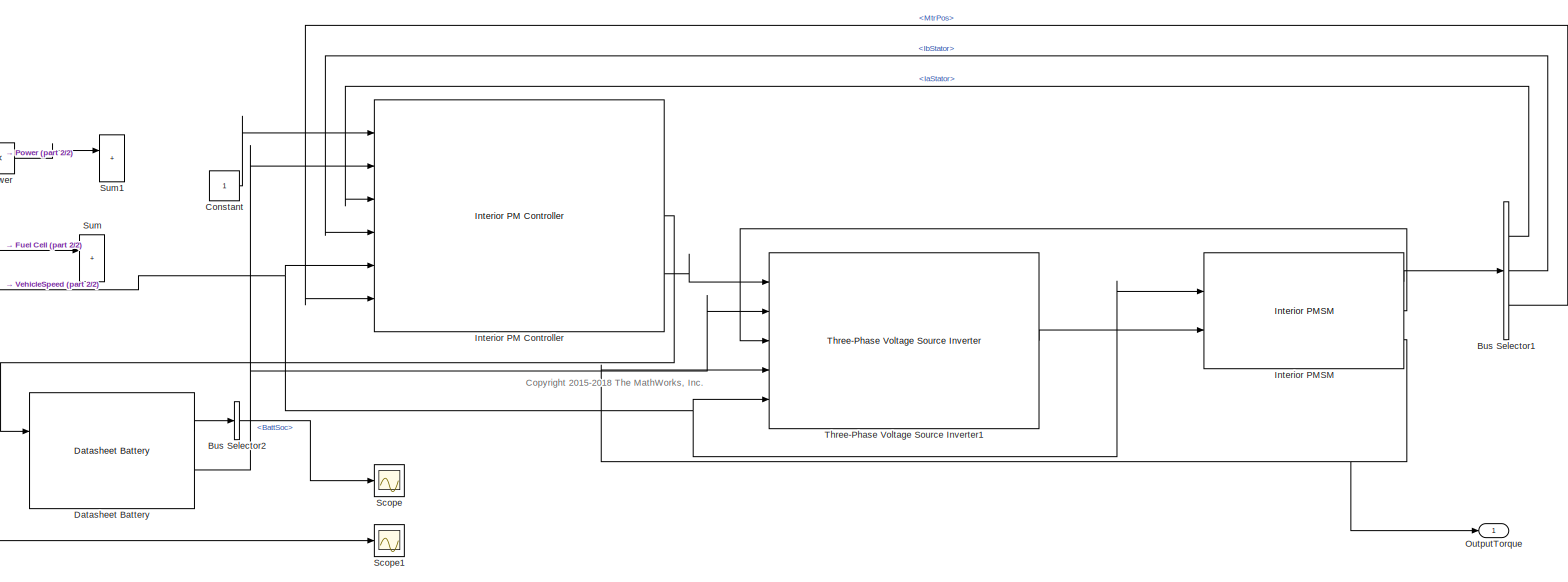
[diagram: root canvas - part 1/2, right side, full height]
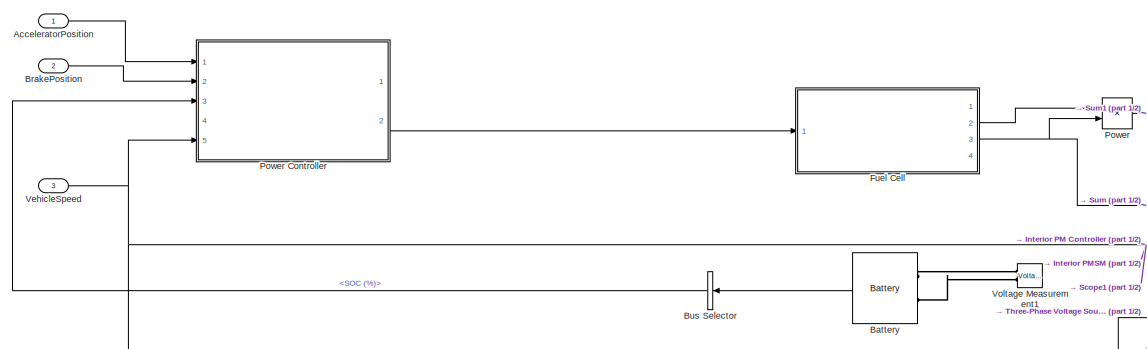
[diagram: root canvas - part 2/2, middle left region]
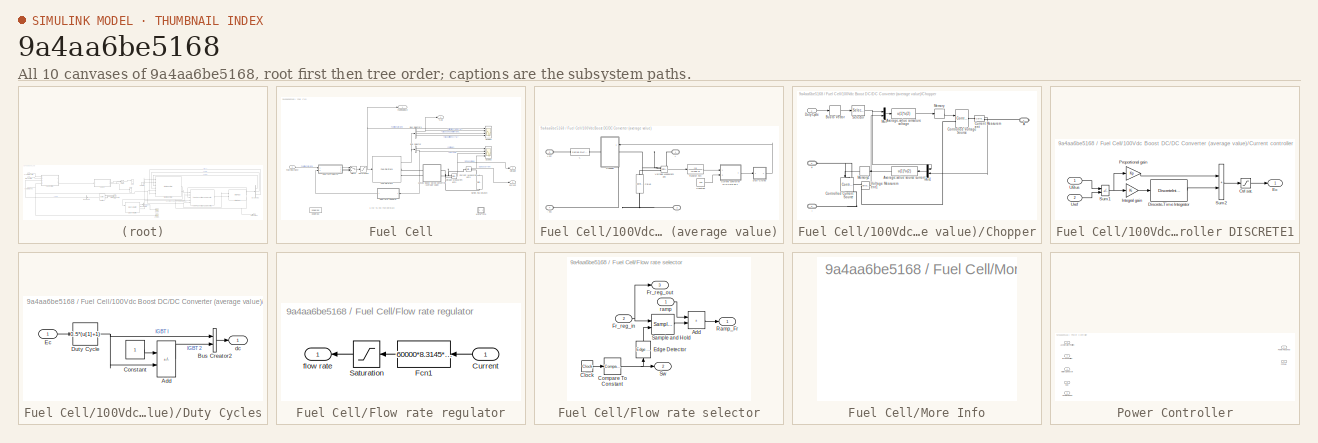
[diagram: thumbnail index - all 10 canvases of the model, root first then tree order]
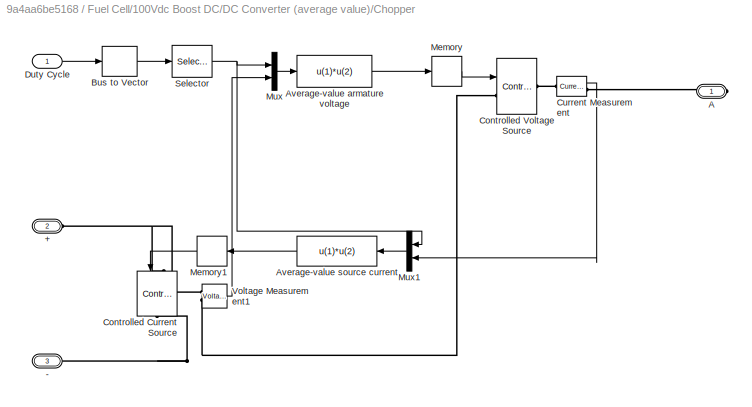
MODEL slx_9a4aa6be5168
KIND model
CONFIG AbsTol = auto
CONFIG EnableMultiTasking = off
CONFIG FixedStep = auto
CONFIG MaxStep = auto
CONFIG MinStep = auto
CONFIG RelTol = 1e-3
CONFIG SampleTimeConstraint = Unconstrained
CONFIG Solver = VariableStepAuto
CONFIG SolverName = VariableStepAuto
CONFIG StartTime = 0.0
CONFIG StopTime = 10.0
BLOCK [Inport] AcceleratorPosition
BLOCK [Reference] Battery  REF=electricdrivelib/Extra Sources/Battery
  Ports = [0, 1, 0, 0, 0, 2]
  SourceBlock = electricdrivelib/Extra Sources/Battery
  SourceProductBaseCode = PS
  SourceType = Battery
BLOCK [Inport] BrakePosition
  Port = 2
BLOCK [BusSelector] Bus Selector
  OutputSignals = SOC (%)
  Ports = [1, 1]
BLOCK [BusSelector] Bus Selector1
  AttributesFormatString = %<OutputSignals>
  OutputSignals = IaStator,IbStator,MtrPos
  Ports = [1, 3]
BLOCK [BusSelector] Bus Selector2
  OutputSignals = BattSoc
  Ports = [1, 1]
BLOCK [Constant] Constant
BLOCK [Reference] Datasheet Battery  REF=autolibdatasheetbattery/Datasheet Battery
  Ports = [2, 2]
  SourceBlock = autolibdatasheetbattery/Datasheet Battery
  SourceProductBaseCode = PW
  SourceType = Datasheet Battery
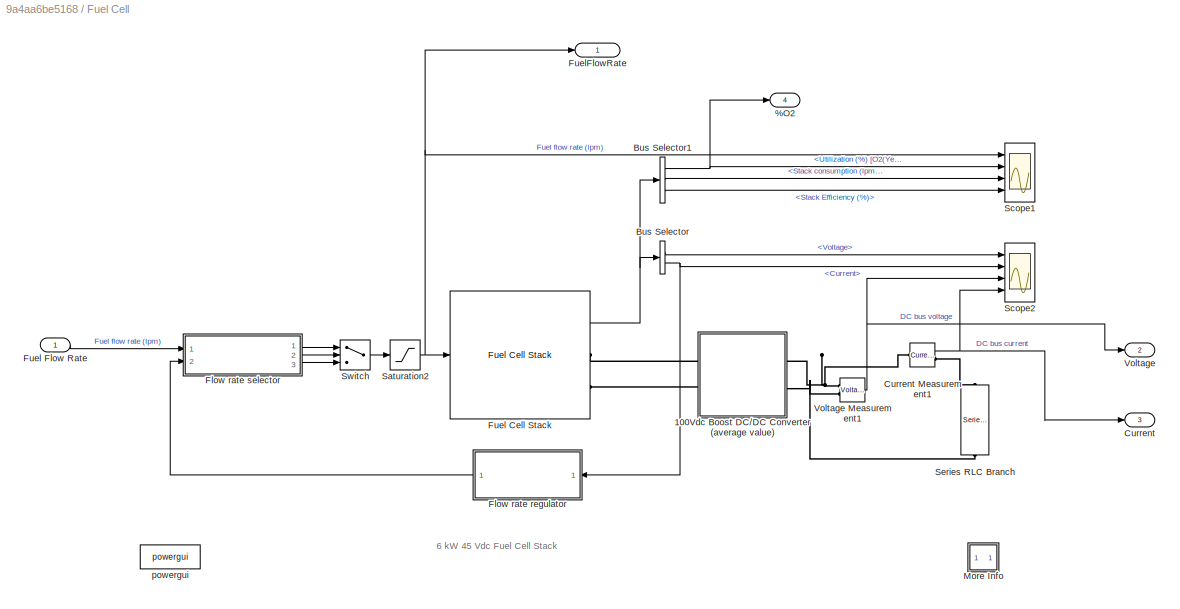
BLOCK [SubSystem] Fuel Cell
  Ports = [1, 4]
  RequestExecContextInheritance = off
BLOCK [Outport] Fuel Cell/%O2
  Port = 4
BLOCK [SubSystem] Fuel Cell/100Vdc Boost DC//DC Converter (average value)
  Ports = [0, 0, 0, 0, 0, 2, 2]
  RequestExecContextInheritance = off
BLOCK [PMIOPort] Fuel Cell/100Vdc Boost DC//DC Converter (average value)/+
  NameLocation = top
  Side = Right
  Tag = PMCPort
BLOCK [PMIOPort] Fuel Cell/100Vdc Boost DC//DC Converter (average value)/+ FC
  NameLocation = top
  Port = 3
  Side = Left
  Tag = PMCPort
BLOCK [PMIOPort] Fuel Cell/100Vdc Boost DC//DC Converter (average value)/-
  NameLocation = top
  Port = 2
  Side = Right
  Tag = PMCPort
BLOCK [PMIOPort] Fuel Cell/100Vdc Boost DC//DC Converter (average value)/- FC
  NameLocation = top
  Port = 4
  Side = Left
  Tag = PMCPort
BLOCK [Reference] Fuel Cell/100Vdc Boost DC//DC Converter (average value)/CBus  REF=powerlib/Elements/Series RLC Branch
  NameLocation = left
  Ports = [0, 0, 0, 0, 0, 1, 1]
  SourceBlock = powerlib/Elements/Series RLC Branch
  SourceProductBaseCode = MT,PS
  SourceType = Series RLC Branch
BLOCK [SubSystem] Fuel Cell/100Vdc Boost DC//DC Converter (average value)/Chopper
  NameLocation = top
  Ports = [1, 0, 0, 0, 0, 2, 1]
  RequestExecContextInheritance = off
BLOCK [PMIOPort] Fuel Cell/100Vdc Boost DC//DC Converter (average value)/Chopper/+
  Port = 2
  Side = Left
BLOCK [PMIOPort] Fuel Cell/100Vdc Boost DC//DC Converter (average value)/Chopper/-
  Port = 3
  Side = Left
BLOCK [PMIOPort] Fuel Cell/100Vdc Boost DC//DC Converter (average value)/Chopper/A
  Side = Right
BLOCK [Fcn] Fuel Cell/100Vdc Boost DC//DC Converter (average value)/Chopper/Average-value armature voltage
  Expr = u(1)*u(2)
BLOCK [Fcn] Fuel Cell/100Vdc Boost DC//DC Converter (average value)/Chopper/Average-value source current
  Expr = u(1)*u(2)
BLOCK [BusToVector] Fuel Cell/100Vdc Boost DC//DC Converter (average value)/Chopper/Bus to Vector
BLOCK [Reference] Fuel Cell/100Vdc Boost DC//DC Converter (average value)/Chopper/Controlled Current Source  REF=powerlib/Electrical
Sources/Controlled Current Source
  NameLocation = left
  Ports = [1, 0, 0, 0, 0, 1, 1]
  SourceBlock = powerlib/Electrical\nSources/Controlled Current Source
  SourceProductBaseCode = MT,PS
  SourceType = Controlled Current Source
BLOCK [Reference] Fuel Cell/100Vdc Boost DC//DC Converter (average value)/Chopper/Controlled Voltage Source  REF=powerlib/Electrical
Sources/Controlled Voltage Source
  Ports = [1, 0, 0, 0, 0, 1, 1]
  SourceBlock = powerlib/Electrical\nSources/Controlled Voltage Source
  SourceProductBaseCode = MT,PS
  SourceType = Controlled Voltage Source
BLOCK [Reference] Fuel Cell/100Vdc Boost DC//DC Converter (average value)/Chopper/Current Measurement  REF=powerlib/Measurements/Current Measurement
  AttributesFormatString = \n
  NameLocation = top
  Ports = [0, 1, 0, 0, 0, 1, 1]
  SourceBlock = powerlib/Measurements/Current Measurement
  SourceProductBaseCode = MT,PS
  SourceType = Current Measurement
  Tag = PoWeRsYsTeMmEaSuReMeNt
BLOCK [Inport] Fuel Cell/100Vdc Boost DC//DC Converter (average value)/Chopper/Duty Cycle
BLOCK [Memory] Fuel Cell/100Vdc Boost DC//DC Converter (average value)/Chopper/Memory
BLOCK [Memory] Fuel Cell/100Vdc Boost DC//DC Converter (average value)/Chopper/Memory1
  NameLocation = top
BLOCK [Mux] Fuel Cell/100Vdc Boost DC//DC Converter (average value)/Chopper/Mux
  DisplayOption = bar
  Inputs = 2
  Ports = [2, 1]
BLOCK [Mux] Fuel Cell/100Vdc Boost DC//DC Converter (average value)/Chopper/Mux1
  DisplayOption = bar
  Inputs = 2
  NameLocation = top
  Ports = [2, 1]
BLOCK [Selector] Fuel Cell/100Vdc Boost DC//DC Converter (average value)/Chopper/Selector
  IndexOptions = Index vector (dialog)
  Indices = [1]
  InputPortWidth = 2
  OutputSizes = 1
  Ports = [1, 1]
BLOCK [Reference] Fuel Cell/100Vdc Boost DC//DC Converter (average value)/Chopper/Voltage Measurement1  REF=powerlib/Measurements/Voltage Measurement
  AttributesFormatString = \n
  Ports = [0, 1, 0, 0, 0, 2]
  SourceBlock = powerlib/Measurements/Voltage Measurement
  SourceProductBaseCode = MT,PS
  SourceType = Voltage Measurement
  Tag = PoWeRsYsTeMmEaSuReMeNt
BLOCK [Constant] Fuel Cell/100Vdc Boost DC//DC Converter (average value)/Constant
  Value = 100
BLOCK [SubSystem] Fuel Cell/100Vdc Boost DC//DC Converter (average value)/Current controller DISCRETE1
  NameLocation = top
  Ports = [2, 1]
  RequestExecContextInheritance = off
BLOCK [Saturate] Fuel Cell/100Vdc Boost DC//DC Converter (average value)/Current controller DISCRETE1/Ctrl sat.
  LowerLimit = -0.95
  UpperLimit = 0.95
BLOCK [DiscreteIntegrator] Fuel Cell/100Vdc Boost DC//DC Converter (average value)/Current controller DISCRETE1/Discrete-Time Integrator
  ICPrevOutput = DiscIntNeverNeededParam
  ICPrevScaledInput = DiscIntNeverNeededParam
  IntegratorMethod = Integration: Trapezoidal
  LimitOutput = on
  LowerSaturationLimit = -0.95
  Ports = [1, 1]
  SampleTime = Ts
  UpperSaturationLimit = 0.95
BLOCK [Outport] Fuel Cell/100Vdc Boost DC//DC Converter (average value)/Current controller DISCRETE1/Ec
  InitialOutput = 0
  VectorParamsAs1DForOutWhenUnconnected = off
BLOCK [Gain] Fuel Cell/100Vdc Boost DC//DC Converter (average value)/Current controller DISCRETE1/Integral gain
  Gain = Ki
  OutDataTypeStr = Inherit: Same as input
  ParamDataTypeStr = Inherit: Same as input
  SaturateOnIntegerOverflow = on
BLOCK [Gain] Fuel Cell/100Vdc Boost DC//DC Converter (average value)/Current controller DISCRETE1/Proportional gain
  Gain = Kp
  NameLocation = top
  OutDataTypeStr = Inherit: Same as input
  ParamDataTypeStr = Inherit: Same as input
  SaturateOnIntegerOverflow = on
BLOCK [Sum] Fuel Cell/100Vdc Boost DC//DC Converter (average value)/Current controller DISCRETE1/Sum1
  IconShape = rectangular
  InputSameDT = on
  Inputs = +-
  OutDataTypeStr = Inherit: Same as first input
  Ports = [2, 1]
  SaturateOnIntegerOverflow = on
BLOCK [Sum] Fuel Cell/100Vdc Boost DC//DC Converter (average value)/Current controller DISCRETE1/Sum2
  IconShape = rectangular
  InputSameDT = on
  OutDataTypeStr = Inherit: Same as first input
  Ports = [2, 1]
  SaturateOnIntegerOverflow = on
BLOCK [Inport] Fuel Cell/100Vdc Boost DC//DC Converter (average value)/Current controller DISCRETE1/UBus
BLOCK [Inport] Fuel Cell/100Vdc Boost DC//DC Converter (average value)/Current controller DISCRETE1/Uref
  Port = 2
BLOCK [SubSystem] Fuel Cell/100Vdc Boost DC//DC Converter (average value)/Duty Cycles
  Ports = [1, 1]
  RequestExecContextInheritance = off
BLOCK [Sum] Fuel Cell/100Vdc Boost DC//DC Converter (average value)/Duty Cycles/Add
  IconShape = rectangular
  Inputs = +-
  Ports = [2, 1]
BLOCK [BusCreator] Fuel Cell/100Vdc Boost DC//DC Converter (average value)/Duty Cycles/Bus Creator2
  DisplayOption = bar
  InheritFromInputs = on
  Inputs = 2
  Ports = [2, 1]
BLOCK [Constant] Fuel Cell/100Vdc Boost DC//DC Converter (average value)/Duty Cycles/Constant
BLOCK [Fcn] Fuel Cell/100Vdc Boost DC//DC Converter (average value)/Duty Cycles/Duty Cycle
  Expr = 0.5*(u[1]+1)
BLOCK [Inport] Fuel Cell/100Vdc Boost DC//DC Converter (average value)/Duty Cycles/Ec
BLOCK [Outport] Fuel Cell/100Vdc Boost DC//DC Converter (average value)/Duty Cycles/dc
  VectorParamsAs1DForOutWhenUnconnected = off
BLOCK [Reference] Fuel Cell/100Vdc Boost DC//DC Converter (average value)/L  REF=powerlib/Elements/Series RLC Branch
  NameLocation = top
  Ports = [0, 0, 0, 0, 0, 1, 1]
  SourceBlock = powerlib/Elements/Series RLC Branch
  SourceProductBaseCode = MT,PS
  SourceType = Series RLC Branch
BLOCK [TransferFcn] Fuel Cell/100Vdc Boost DC//DC Converter (average value)/Transfer Fcn
  Denominator = [0.001 1]
BLOCK [Reference] Fuel Cell/100Vdc Boost DC//DC Converter (average value)/Voltage Measurement  REF=powerlib/Measurements/Voltage Measurement
  Ports = [0, 1, 0, 0, 0, 2]
  SourceBlock = powerlib/Measurements/Voltage Measurement
  SourceProductBaseCode = MT,PS
  SourceType = Voltage Measurement
BLOCK [BusSelector] Fuel Cell/Bus Selector
  OutputSignals = Voltage,Current
  Ports = [1, 2]
BLOCK [BusSelector] Fuel Cell/Bus Selector1
  OutputSignals = Utilization (%) [O2(Yellow); H2(Magenta)],Stack consumption (lpm) [Air(Yellow); Fuel(Magenta)],Stack Efficiency (%)
  Ports = [1, 3]
BLOCK [Outport] Fuel Cell/Current
  Port = 3
BLOCK [Reference] Fuel Cell/Current Measurement1  REF=powerlib/Measurements/Current Measurement
  Ports = [0, 1, 0, 0, 0, 1, 1]
  SourceBlock = powerlib/Measurements/Current Measurement
  SourceProductBaseCode = MT,PS
  SourceType = Current Measurement
BLOCK [SubSystem] Fuel Cell/Flow rate regulator
  Ports = [1, 1]
  RequestExecContextInheritance = off
BLOCK [Inport] Fuel Cell/Flow rate regulator/Current
BLOCK [Fcn] Fuel Cell/Flow rate regulator/Fcn1
  Expr = 60000*8.3145*(273+T)*Nc*u(1)/(2*96485*(Pf*101325)*Uf_H2/100*x/100)
  NameLocation = top
BLOCK [Saturate] Fuel Cell/Flow rate regulator/Saturation
  LowerLimit = 1
  NameLocation = top
  UpperLimit = inf
BLOCK [Outport] Fuel Cell/Flow rate regulator/flow rate
  VectorParamsAs1DForOutWhenUnconnected = off
BLOCK [SubSystem] Fuel Cell/Flow rate selector
  Ports = [2, 3]
  RequestExecContextInheritance = off
BLOCK [Sum] Fuel Cell/Flow rate selector/Add
  IconShape = rectangular
  Ports = [2, 1]
BLOCK [Clock] Fuel Cell/Flow rate selector/Clock
  Decimation = 1
BLOCK [Reference] Fuel Cell/Flow rate selector/Compare To Constant  REF=simulink/Logic and Bit
Operations/Compare
To Constant
  Ports = [1, 1]
  SourceBlock = simulink/Logic and Bit\nOperations/Compare\nTo Constant
  SourceProductBaseCode = SL
  SourceType = Compare To Constant
BLOCK [Reference] Fuel Cell/Flow rate selector/Edge Detector  REF=powerlib_meascontrol/Logic/Edge Detector
  NameLocation = left
  Ports = [1, 1]
  SourceBlock = powerlib_meascontrol/Logic/Edge Detector
  SourceProductBaseCode = MT,PS
  SourceType = Edge Detector
BLOCK [Inport] Fuel Cell/Flow rate selector/Fr_reg_in
  Port = 2
BLOCK [Outport] Fuel Cell/Flow rate selector/Fr_reg_out
  Port = 3
  VectorParamsAs1DForOutWhenUnconnected = off
BLOCK [Outport] Fuel Cell/Flow rate selector/Ramp_Fr
  VectorParamsAs1DForOutWhenUnconnected = off
BLOCK [Reference] Fuel Cell/Flow rate selector/Sample and Hold  REF=powerlib_meascontrol/Additional Components/Sample and
Hold
  Ports = [2, 1]
  SourceBlock = powerlib_meascontrol/Additional Components/Sample and\nHold
  SourceProductBaseCode = MT,PS
  SourceType = Sample and Hold
BLOCK [Outport] Fuel Cell/Flow rate selector/Sw
  Port = 2
  VectorParamsAs1DForOutWhenUnconnected = off
BLOCK [Inport] Fuel Cell/Flow rate selector/ramp
BLOCK [Reference] Fuel Cell/Fuel Cell Stack  REF=electricdrivelib/Extra Sources/Fuel Cell Stack
  Ports = [1, 1, 0, 0, 0, 0, 2]
  SourceBlock = electricdrivelib/Extra Sources/Fuel Cell Stack
  SourceProductBaseCode = PS
  SourceType = Fuel Cell Stack
BLOCK [Inport] Fuel Cell/Fuel Flow Rate
BLOCK [Outport] Fuel Cell/FuelFlowRate
BLOCK [SubSystem] Fuel Cell/More Info
  NameLocation = top
  OpenFcn = showdemo(bdroot(gcb))
  Ports = []
  RequestExecContextInheritance = off
BLOCK [Saturate] Fuel Cell/Saturation2
  LowerLimit = 0
  UpperLimit = 85
BLOCK [Scope] Fuel Cell/Scope1
  Floating = off
  NumInputPorts = 4
  Ports = [4]
  ScopeSpecificationString = Simulink.scopes.TimeScopeBlockCfg('CurrentConfiguration', extmgr.ConfigurationSet(extmgr.Configuration('Core','General UI',true,'FigureColor',[0.156862745098039 0.156862745098039 0.156862745098039]),extmgr.Configuration('Core','Source UI',true),extmgr.Configuration('Sources','WiredSimulink',true,'DataLoggingVariableName','ScopeData1','DataLoggingSaveFormat','StructureWithTime','DataLoggingDecimati...<+6600ch>
BLOCK [Scope] Fuel Cell/Scope2
  Floating = off
  NumInputPorts = 4
  Ports = [4]
  ScopeSpecificationString = Simulink.scopes.TimeScopeBlockCfg('CurrentConfiguration', extmgr.ConfigurationSet(extmgr.Configuration('Core','General UI',true,'FigureColor',[0.156862745098039 0.156862745098039 0.156862745098039]),extmgr.Configuration('Core','Source UI',true),extmgr.Configuration('Sources','WiredSimulink',true,'DataLoggingSaveFormat','StructureWithTime','DataLoggingDecimation','1'),extmgr.Configuration('Visuals'...<+6357ch>
BLOCK [Reference] Fuel Cell/Series RLC Branch  REF=powerlib/Elements/Series RLC Branch
  NameLocation = left
  Ports = [0, 0, 0, 0, 0, 1, 1]
  SourceBlock = powerlib/Elements/Series RLC Branch
  SourceProductBaseCode = MT,PS
  SourceType = Series RLC Branch
BLOCK [Switch] Fuel Cell/Switch
  Criteria = u2 > Threshold
  InputSameDT = off
  SaturateOnIntegerOverflow = off
BLOCK [Outport] Fuel Cell/Voltage
  Port = 2
BLOCK [Reference] Fuel Cell/Voltage Measurement1  REF=powerlib/Measurements/Voltage Measurement
  Ports = [0, 1, 0, 0, 0, 2]
  SourceBlock = powerlib/Measurements/Voltage Measurement
  SourceProductBaseCode = MT,PS
  SourceType = Voltage Measurement
BLOCK [Reference] Fuel Cell/powergui  REF=powerlib/powergui
  Ports = []
  SourceBlock = powerlib/powergui
  SourceProductBaseCode = MT,PS
  SourceType = PSB option menu block
BLOCK [Reference] Interior PM Controller  REF=autolibmotorctrlr/Interior PM Controller
  Ports = [6, 3]
  SourceBlock = autolibmotorctrlr/Interior PM Controller
  SourceProductBaseCode = PW
  SourceType = Interior PM Controller
BLOCK [Reference] Interior PMSM  REF=autolibpmsminterior/Interior PMSM
  Ports = [2, 3]
  SourceBlock = autolibpmsminterior/Interior PMSM
  SourceProductBaseCode = PW,MT,VE,VP
  SourceType = Interior PMSM
BLOCK [Outport] OutputTorque
BLOCK [Product] Power
  Ports = [2, 1]
BLOCK [SubSystem] Power Controller
  Ports = [5, 2]
  RequestExecContextInheritance = off
BLOCK [Inport] Power Controller/AcceloratorPosition
BLOCK [Inport] Power Controller/BrakePosition
  Port = 2
BLOCK [Outport] Power Controller/FCFuel
  Port = 2
BLOCK [Inport] Power Controller/MotorSpeed(w)
  Port = 4
BLOCK [Outport] Power Controller/Power Required
BLOCK [Inport] Power Controller/SOC
  Port = 3
BLOCK [Inport] Power Controller/VehicleSpeed
  Port = 5
BLOCK [Scope] Scope
  Floating = off
  NumInputPorts = 1
  Ports = [1]
  ScopeSpecificationString = Simulink.scopes.TimeScopeBlockCfg('CurrentConfiguration', extmgr.ConfigurationSet(extmgr.Configuration('Core','General UI',true),extmgr.Configuration('Core','Source UI',true),extmgr.Configuration('Sources','WiredSimulink',true,'DataLoggingVariableName','ScopeData1'),extmgr.Configuration('Visuals','Time Domain',true),extmgr.Configuration('Tools','Plot Navigation',true),extmgr.Configuration('Tools',...<+40ch>
BLOCK [Scope] Scope1
  Floating = off
  NumInputPorts = 1
  Ports = [1]
  ScopeSpecificationString = Simulink.scopes.TimeScopeBlockCfg('CurrentConfiguration', extmgr.ConfigurationSet(extmgr.Configuration('Core','General UI',true),extmgr.Configuration('Core','Source UI',true),extmgr.Configuration('Sources','WiredSimulink',true,'DataLoggingVariableName','ScopeData2'),extmgr.Configuration('Visuals','Time Domain',true),extmgr.Configuration('Tools','Plot Navigation',true),extmgr.Configuration('Tools',...<+40ch>
BLOCK [Sum] Sum
  IconShape = rectangular
  Ports = [2, 1]
BLOCK [Sum] Sum1
  IconShape = rectangular
  Ports = [2, 1]
BLOCK [Reference] Three-Phase Voltage Source Inverter1  REF=autolibinverter/Three-Phase Voltage Source Inverter
  Ports = [5, 3]
  SourceBlock = autolibinverter/Three-Phase Voltage Source Inverter
  SourceProductBaseCode = PW,MT,VE,VP
  SourceType = Three-Phase Voltage Source Inverter
BLOCK [Inport] VehicleSpeed
  Port = 3
BLOCK [Reference] Voltage Measurement1  REF=powerlib/Measurements/Voltage Measurement
  Ports = [0, 1, 0, 0, 0, 2]
  SourceBlock = powerlib/Measurements/Voltage Measurement
  SourceProductBaseCode = PS
  SourceType = Voltage Measurement
  UserDataPersistent = on
ANNOTATION (root): <copyright redacted>
ANNOTATION Fuel Cell: 6 kW 45 Vdc Fuel Cell Stack
LINE AcceleratorPosition:1 -> Power Controller:1
LINE Battery:1 -> Bus Selector:1
LINE BrakePosition:1 -> Power Controller:2
LINE Bus Selector1:1 -> Interior PM Controller:3
LINE Bus Selector1:2 -> Interior PM Controller:4
LINE Bus Selector1:3 -> Interior PM Controller:6
LINE Bus Selector2:1 -> Scope:1
LINE Bus Selector:1 -> Power Controller:3
LINE Constant:1 -> Interior PM Controller:1
LINE Datasheet Battery:1 -> Bus Selector2:1
NET Datasheet Battery:2 -> Interior PM Controller:2, Three-Phase Voltage Source Inverter1:2
LINE Fuel Cell/100Vdc Boost DC//DC Converter (average value)/Chopper/Average-value armature voltage:1 -> Fuel Cell/100Vdc Boost DC//DC Converter (average value)/Chopper/Memory:1
LINE Fuel Cell/100Vdc Boost DC//DC Converter (average value)/Chopper/Average-value source current:1 -> Fuel Cell/100Vdc Boost DC//DC Converter (average value)/Chopper/Memory1:1
LINE Fuel Cell/100Vdc Boost DC//DC Converter (average value)/Chopper/Bus to Vector:1 -> Fuel Cell/100Vdc Boost DC//DC Converter (average value)/Chopper/Selector:1
LINE Fuel Cell/100Vdc Boost DC//DC Converter (average value)/Chopper/Current Measurement:1 -> Fuel Cell/100Vdc Boost DC//DC Converter (average value)/Chopper/Mux1:2
LINE Fuel Cell/100Vdc Boost DC//DC Converter (average value)/Chopper/Duty Cycle:1 -> Fuel Cell/100Vdc Boost DC//DC Converter (average value)/Chopper/Bus to Vector:1
LINE Fuel Cell/100Vdc Boost DC//DC Converter (average value)/Chopper/Memory1:1 -> Fuel Cell/100Vdc Boost DC//DC Converter (average value)/Chopper/Controlled Current Source:1
LINE Fuel Cell/100Vdc Boost DC//DC Converter (average value)/Chopper/Memory:1 -> Fuel Cell/100Vdc Boost DC//DC Converter (average value)/Chopper/Controlled Voltage Source:1
LINE Fuel Cell/100Vdc Boost DC//DC Converter (average value)/Chopper/Mux1:1 -> Fuel Cell/100Vdc Boost DC//DC Converter (average value)/Chopper/Average-value source current:1
LINE Fuel Cell/100Vdc Boost DC//DC Converter (average value)/Chopper/Mux:1 -> Fuel Cell/100Vdc Boost DC//DC Converter (average value)/Chopper/Average-value armature voltage:1
NET Fuel Cell/100Vdc Boost DC//DC Converter (average value)/Chopper/Selector:1 -> Fuel Cell/100Vdc Boost DC//DC Converter (average value)/Chopper/Mux1:1, Fuel Cell/100Vdc Boost DC//DC Converter (average value)/Chopper/Mux:1
LINE Fuel Cell/100Vdc Boost DC//DC Converter (average value)/Chopper/Voltage Measurement1:1 -> Fuel Cell/100Vdc Boost DC//DC Converter (average value)/Chopper/Mux:2
LINE Fuel Cell/100Vdc Boost DC//DC Converter (average value)/Constant:1 -> Fuel Cell/100Vdc Boost DC//DC Converter (average value)/Current controller DISCRETE1:2
LINE Fuel Cell/100Vdc Boost DC//DC Converter (average value)/Current controller DISCRETE1/Ctrl sat.:1 -> Fuel Cell/100Vdc Boost DC//DC Converter (average value)/Current controller DISCRETE1/Ec:1
LINE Fuel Cell/100Vdc Boost DC//DC Converter (average value)/Current controller DISCRETE1/Discrete-Time Integrator:1 -> Fuel Cell/100Vdc Boost DC//DC Converter (average value)/Current controller DISCRETE1/Sum2:2
LINE Fuel Cell/100Vdc Boost DC//DC Converter (average value)/Current controller DISCRETE1/Integral gain:1 -> Fuel Cell/100Vdc Boost DC//DC Converter (average value)/Current controller DISCRETE1/Discrete-Time Integrator:1
LINE Fuel Cell/100Vdc Boost DC//DC Converter (average value)/Current controller DISCRETE1/Proportional gain:1 -> Fuel Cell/100Vdc Boost DC//DC Converter (average value)/Current controller DISCRETE1/Sum2:1
NET Fuel Cell/100Vdc Boost DC//DC Converter (average value)/Current controller DISCRETE1/Sum1:1 -> Fuel Cell/100Vdc Boost DC//DC Converter (average value)/Current controller DISCRETE1/Integral gain:1, Fuel Cell/100Vdc Boost DC//DC Converter (average value)/Current controller DISCRETE1/Proportional gain:1
LINE Fuel Cell/100Vdc Boost DC//DC Converter (average value)/Current controller DISCRETE1/Sum2:1 -> Fuel Cell/100Vdc Boost DC//DC Converter (average value)/Current controller DISCRETE1/Ctrl sat.:1
LINE Fuel Cell/100Vdc Boost DC//DC Converter (average value)/Current controller DISCRETE1/UBus:1 -> Fuel Cell/100Vdc Boost DC//DC Converter (average value)/Current controller DISCRETE1/Sum1:1
LINE Fuel Cell/100Vdc Boost DC//DC Converter (average value)/Current controller DISCRETE1/Uref:1 -> Fuel Cell/100Vdc Boost DC//DC Converter (average value)/Current controller DISCRETE1/Sum1:2
LINE Fuel Cell/100Vdc Boost DC//DC Converter (average value)/Current controller DISCRETE1:1 -> Fuel Cell/100Vdc Boost DC//DC Converter (average value)/Duty Cycles:1
LINE Fuel Cell/100Vdc Boost DC//DC Converter (average value)/Duty Cycles/Add:1 -> Fuel Cell/100Vdc Boost DC//DC Converter (average value)/Duty Cycles/Bus Creator2:2
LINE Fuel Cell/100Vdc Boost DC//DC Converter (average value)/Duty Cycles/Bus Creator2:1 -> Fuel Cell/100Vdc Boost DC//DC Converter (average value)/Duty Cycles/dc:1
LINE Fuel Cell/100Vdc Boost DC//DC Converter (average value)/Duty Cycles/Constant:1 -> Fuel Cell/100Vdc Boost DC//DC Converter (average value)/Duty Cycles/Add:1
NET Fuel Cell/100Vdc Boost DC//DC Converter (average value)/Duty Cycles/Duty Cycle:1 -> Fuel Cell/100Vdc Boost DC//DC Converter (average value)/Duty Cycles/Add:2, Fuel Cell/100Vdc Boost DC//DC Converter (average value)/Duty Cycles/Bus Creator2:1
LINE Fuel Cell/100Vdc Boost DC//DC Converter (average value)/Duty Cycles/Ec:1 -> Fuel Cell/100Vdc Boost DC//DC Converter (average value)/Duty Cycles/Duty Cycle:1
LINE Fuel Cell/100Vdc Boost DC//DC Converter (average value)/Duty Cycles:1 -> Fuel Cell/100Vdc Boost DC//DC Converter (average value)/Chopper:1
LINE Fuel Cell/100Vdc Boost DC//DC Converter (average value)/Transfer Fcn:1 -> Fuel Cell/100Vdc Boost DC//DC Converter (average value)/Current controller DISCRETE1:1
LINE Fuel Cell/100Vdc Boost DC//DC Converter (average value)/Voltage Measurement:1 -> Fuel Cell/100Vdc Boost DC//DC Converter (average value)/Transfer Fcn:1
NET Fuel Cell/Bus Selector1:1 -> Fuel Cell/%O2:1, Fuel Cell/Scope1:2
LINE Fuel Cell/Bus Selector1:2 -> Fuel Cell/Scope1:3
LINE Fuel Cell/Bus Selector1:3 -> Fuel Cell/Scope1:4
LINE Fuel Cell/Bus Selector:1 -> Fuel Cell/Scope2:1
NET Fuel Cell/Bus Selector:2 -> Fuel Cell/Flow rate regulator:1, Fuel Cell/Scope2:2
NET Fuel Cell/Current Measurement1:1 -> Fuel Cell/Current:1, Fuel Cell/Scope2:4
LINE Fuel Cell/Flow rate regulator/Current:1 -> Fuel Cell/Flow rate regulator/Fcn1:1
LINE Fuel Cell/Flow rate regulator/Fcn1:1 -> Fuel Cell/Flow rate regulator/Saturation:1
LINE Fuel Cell/Flow rate regulator/Saturation:1 -> Fuel Cell/Flow rate regulator/flow rate:1
LINE Fuel Cell/Flow rate regulator:1 -> Fuel Cell/Flow rate selector:2
LINE Fuel Cell/Flow rate selector/Add:1 -> Fuel Cell/Flow rate selector/Ramp_Fr:1
LINE Fuel Cell/Flow rate selector/Clock:1 -> Fuel Cell/Flow rate selector/Compare To Constant:1
NET Fuel Cell/Flow rate selector/Compare To Constant:1 -> Fuel Cell/Flow rate selector/Edge Detector:1, Fuel Cell/Flow rate selector/Sw:1
LINE Fuel Cell/Flow rate selector/Edge Detector:1 -> Fuel Cell/Flow rate selector/Sample and Hold:2
NET Fuel Cell/Flow rate selector/Fr_reg_in:1 -> Fuel Cell/Flow rate selector/Fr_reg_out:1, Fuel Cell/Flow rate selector/Sample and Hold:1
LINE Fuel Cell/Flow rate selector/Sample and Hold:1 -> Fuel Cell/Flow rate selector/Add:2
LINE Fuel Cell/Flow rate selector/ramp:1 -> Fuel Cell/Flow rate selector/Add:1
LINE Fuel Cell/Flow rate selector:1 -> Fuel Cell/Switch:1
LINE Fuel Cell/Flow rate selector:2 -> Fuel Cell/Switch:2
LINE Fuel Cell/Flow rate selector:3 -> Fuel Cell/Switch:3
NET Fuel Cell/Fuel Cell Stack:1 -> Fuel Cell/Bus Selector1:1, Fuel Cell/Bus Selector:1
LINE Fuel Cell/Fuel Flow Rate:1 -> Fuel Cell/Flow rate selector:1
NET Fuel Cell/Saturation2:1 -> Fuel Cell/Fuel Cell Stack:1, Fuel Cell/FuelFlowRate:1, Fuel Cell/Scope1:1
LINE Fuel Cell/Switch:1 -> Fuel Cell/Saturation2:1
NET Fuel Cell/Voltage Measurement1:1 -> Fuel Cell/Scope2:3, Fuel Cell/Voltage:1
LINE Fuel Cell:2 -> Power:1
NET Fuel Cell:3 -> Power:2, Sum:1
LINE Interior PM Controller:2 -> Datasheet Battery:1
LINE Interior PM Controller:3 -> Three-Phase Voltage Source Inverter1:1
LINE Interior PMSM:1 -> Bus Selector1:1
LINE Interior PMSM:2 -> Three-Phase Voltage Source Inverter1:3
NET Interior PMSM:3 -> OutputTorque:1, Three-Phase Voltage Source Inverter1:4
LINE Power Controller:2 -> Fuel Cell:1
LINE Power:1 -> Sum1:1
LINE Three-Phase Voltage Source Inverter1:2 -> Interior PMSM:2
NET VehicleSpeed:1 -> Interior PM Controller:5, Interior PMSM:1, Power Controller:5, Scope1:1, Three-Phase Voltage Source Inverter1:5
PLINE Battery:LConn1 -- Voltage Measurement1:LConn1
PLINE Battery:LConn2 -- Voltage Measurement1:LConn2
PLINE Fuel Cell/100Vdc Boost DC//DC Converter (average value)/+ FC:RConn1 -- Fuel Cell/100Vdc Boost DC//DC Converter (average value)/L:RConn1
PNET net1: Fuel Cell/100Vdc Boost DC//DC Converter (average value)/+:RConn1 -- Fuel Cell/100Vdc Boost DC//DC Converter (average value)/CBus:LConn1 -- Fuel Cell/100Vdc Boost DC//DC Converter (average value)/Chopper:LConn1 -- Fuel Cell/100Vdc Boost DC//DC Converter (average value)/Voltage Measurement:LConn1
PNET net2: Fuel Cell/100Vdc Boost DC//DC Converter (average value)/- FC:RConn1 -- Fuel Cell/100Vdc Boost DC//DC Converter (average value)/-:RConn1 -- Fuel Cell/100Vdc Boost DC//DC Converter (average value)/CBus:RConn1 -- Fuel Cell/100Vdc Boost DC//DC Converter (average value)/Chopper:LConn2 -- Fuel Cell/100Vdc Boost DC//DC Converter (average value)/Voltage Measurement:LConn2
PNET net3: Fuel Cell/100Vdc Boost DC//DC Converter (average value)/Chopper/+:RConn1 -- Fuel Cell/100Vdc Boost DC//DC Converter (average value)/Chopper/Controlled Current Source:LConn1 -- Fuel Cell/100Vdc Boost DC//DC Converter (average value)/Chopper/Voltage Measurement1:LConn1
PNET net4: Fuel Cell/100Vdc Boost DC//DC Converter (average value)/Chopper/-:RConn1 -- Fuel Cell/100Vdc Boost DC//DC Converter (average value)/Chopper/Controlled Current Source:RConn1 -- Fuel Cell/100Vdc Boost DC//DC Converter (average value)/Chopper/Controlled Voltage Source:LConn1 -- Fuel Cell/100Vdc Boost DC//DC Converter (average value)/Chopper/Voltage Measurement1:LConn2
PLINE Fuel Cell/100Vdc Boost DC//DC Converter (average value)/Chopper/A:RConn1 -- Fuel Cell/100Vdc Boost DC//DC Converter (average value)/Chopper/Current Measurement:RConn1
PLINE Fuel Cell/100Vdc Boost DC//DC Converter (average value)/Chopper/Controlled Voltage Source:RConn1 -- Fuel Cell/100Vdc Boost DC//DC Converter (average value)/Chopper/Current Measurement:LConn1
PLINE Fuel Cell/100Vdc Boost DC//DC Converter (average value)/Chopper:RConn1 -- Fuel Cell/100Vdc Boost DC//DC Converter (average value)/L:LConn1
PLINE Fuel Cell/100Vdc Boost DC//DC Converter (average value):LConn1 -- Fuel Cell/Fuel Cell Stack:RConn1
PLINE Fuel Cell/100Vdc Boost DC//DC Converter (average value):LConn2 -- Fuel Cell/Fuel Cell Stack:RConn2
PNET net5: Fuel Cell/100Vdc Boost DC//DC Converter (average value):RConn1 -- Fuel Cell/Current Measurement1:LConn1 -- Fuel Cell/Voltage Measurement1:LConn1
PNET net6: Fuel Cell/100Vdc Boost DC//DC Converter (average value):RConn2 -- Fuel Cell/Series RLC Branch:RConn1 -- Fuel Cell/Voltage Measurement1:LConn2
PLINE Fuel Cell/Current Measurement1:RConn1 -- Fuel Cell/Series RLC Branch:LConn1
note: NET lines group one-source signal fan-out (src -> all destinations, sorted); 1:1 wires keep LINE; PNET lines group multi-terminal physical nets as a canonical sorted terminal list (undirected conserving connections); 2-terminal nets keep the pairwise PLINE form
